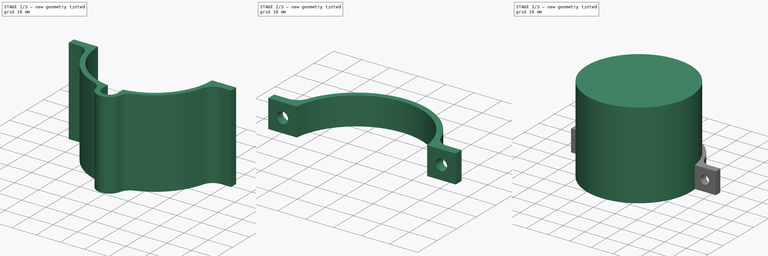
[diagram: build sequence overview — one tinted view per stage of 3, left to right]
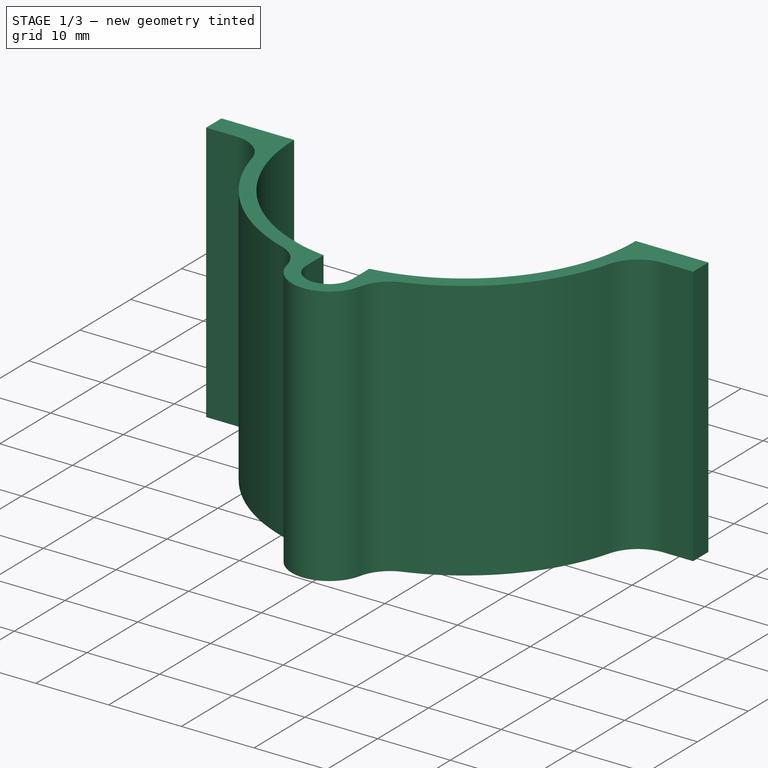
[diagram: stage 1 of 3 — iso view after this stage's code; geometry added in this stage tinted green]
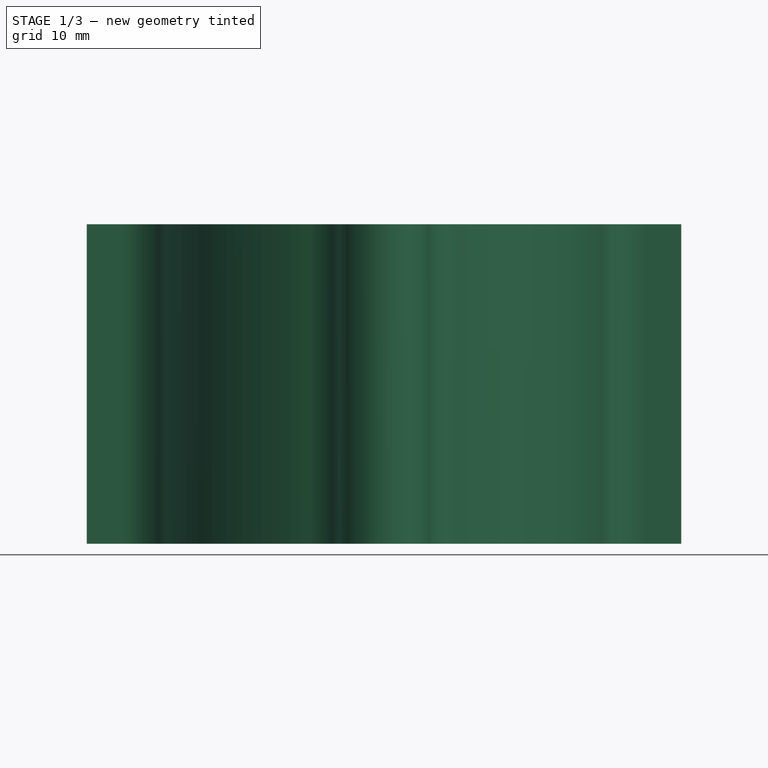
[diagram: stage 1 of 3 — front view after this stage's code; geometry added in this stage tinted green]
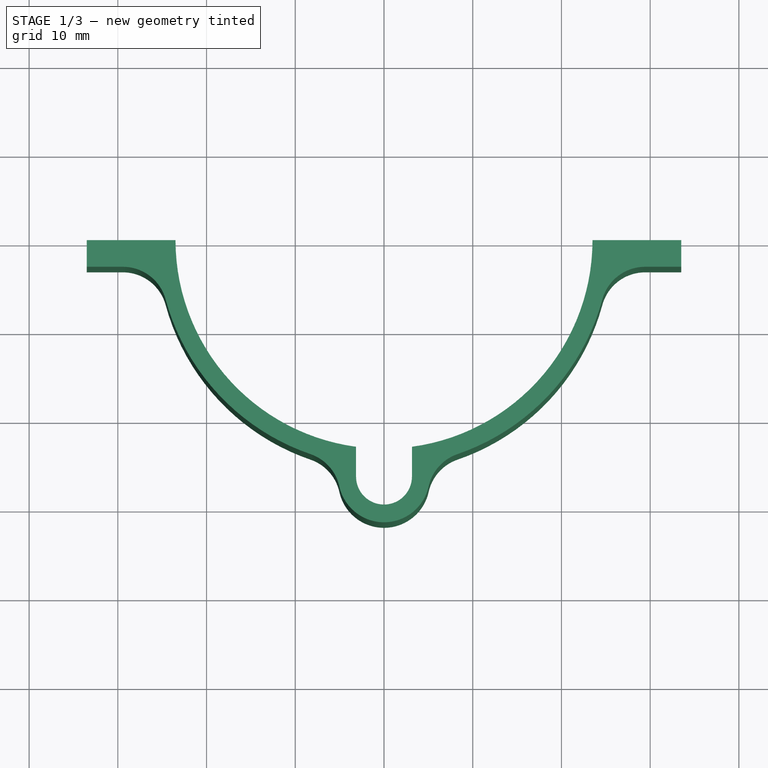
[diagram: stage 1 of 3 — top view after this stage's code; geometry added in this stage tinted green]
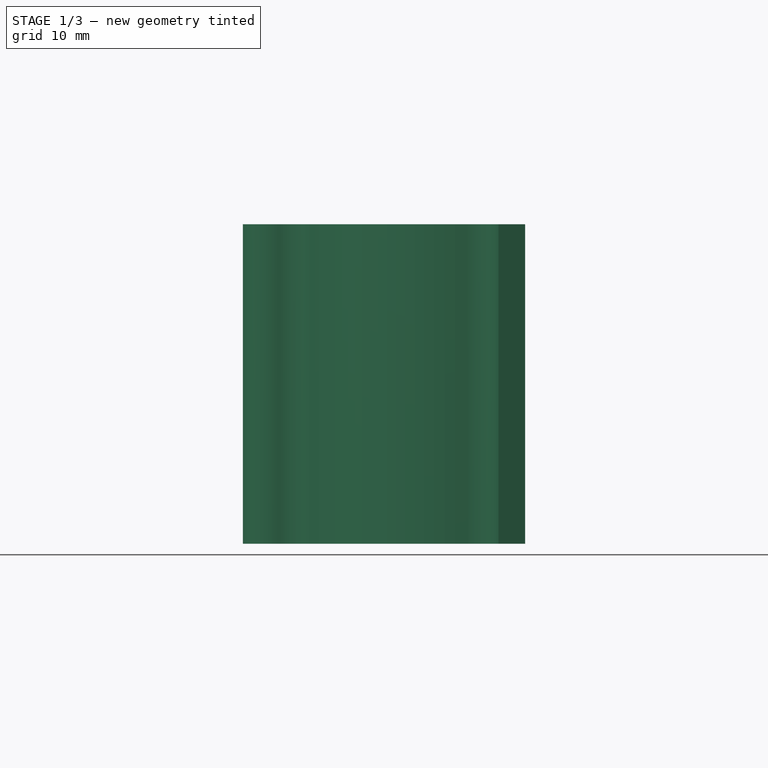
[diagram: stage 1 of 3 — right view after this stage's code; geometry added in this stage tinted green]
FCSTD DOCUMENT  (FreeCAD 1.0R39319 (Git))
Label: sensor_mount
License: All rights reserved
objects: Sketcher::SketchObject×8, PartDesign::Pad×5, PartDesign::Body×5, PartDesign::SubShapeBinder×2, PartDesign::Pocket×2, App::DocumentObjectGroup×1
note: 44 computed .brp shape members not serialized (recipe doc carries the construction recipe); baked Part::Feature solids carry a one-line shape summary decoded from their .brp

FEATURE [Sketcher::SketchObject] Sketch
  ArcFitTolerance = 1e-06
  AttachmentSupport = -> [XY_Plane]
  FullyConstrained = true
  MakeInternals = false
  MapMode = 5
  sketch-geometry (1):
    g0: Circle CenterX=0 CenterY=0 CenterZ=0 NormalX=0 NormalY=0 NormalZ=1 AngleXU=0 Radius=23.5
  constraints (2):
    c: Diameter(g0) = 47
    c: Coincident(g0,g-1)
FEATURE [PartDesign::Pad] Pad
  Direction = (0,0,1)
  Length = 43
  Length2 = 10
  Profile = -> Sketch
  ReferenceAxis = -> Sketch [N_Axis]
  Refine = true
  Suppressed = false
  Type = 0
FEATURE [PartDesign::Body] Body002  label="DS1820"
  AllowCompound = false
  Group = -> [Sketch002,Pad002]
  Origin = -> Origin002
  Placement = pos=(0,-26.7,0) rot=(0,0,1;0rad)
  Tip = -> Pad002
FEATURE [PartDesign::SubShapeBinder] Binder
  BindCopyOnChange = 0
  BindMode = 0
  ClaimChildren = false
  Context = -> Body003 [Binder.]
  Fuse = false
  MakeFace = true
  OffsetFill = false
  OffsetIntersection = false
  OffsetJoinType = 0
  OffsetOpenResult = false
  PartialLoad = false
  Refine = true
  Relative = true
  Support = -> [Body[Sketch.]]
  _Version = 2
FEATURE [Sketcher::SketchObject] Sketch003
  ArcFitTolerance = 1e-06
  AttachmentSupport = -> [XY_Plane003]
  ExternalGeometry = -> [Binder]
  FullyConstrained = false
  MakeInternals = false
  MapMode = 5
  sketch-geometry (20):
    g0: ArcOfCircle CenterX=-1.7e-15 CenterY=-4e-16 CenterZ=0 NormalX=0 NormalY=0 NormalZ=1 AngleXU=0 Radius=25.5 StartAngle=3.40699 EndAngle=4.38147
    g1: Circle [constr] CenterX=0 CenterY=-26.65 CenterZ=0 NormalX=0 NormalY=0 NormalZ=1 AngleXU=0 Radius=3.15
    g2: ArcOfCircle CenterX=0 CenterY=-26.65 CenterZ=0 NormalX=0 NormalY=0 NormalZ=1 AngleXU=0 Radius=3.15 StartAngle=3.14159 EndAngle=6.28319
    g3: LineSegment StartX=3.15 StartY=-26.65 StartZ=0 EndX=3.15 EndY=-23.2879 EndZ=0
    g4: LineSegment StartX=-3.15 StartY=-26.65 StartZ=0 EndX=-3.15 EndY=-23.2879 EndZ=0
    g5: ArcOfCircle CenterX=0 CenterY=-26.65 CenterZ=0 NormalX=0 NormalY=0 NormalZ=1 AngleXU=0 Radius=5.15 StartAngle=3.35959 EndAngle=6.06519
    g6: LineSegment StartX=-33.5 StartY=-3 StartZ=0 EndX=-29.4321 EndY=-3 EndZ=0
    g7: LineSegment StartX=-33.5 StartY=-3 StartZ=0 EndX=-33.5 EndY=2.7e-15 EndZ=0
    g8: LineSegment StartX=-33.5 StartY=2.5e-15 StartZ=0 EndX=-23.5 EndY=2.5e-15 EndZ=0
    g9: LineSegment StartX=33.5 StartY=-3 StartZ=0 EndX=29.4321 EndY=-3 EndZ=0
    g10: LineSegment StartX=33.5 StartY=-3 StartZ=0 EndX=33.5 EndY=2.7e-15 EndZ=0
    g11: LineSegment StartX=33.5 StartY=2.5e-15 StartZ=0 EndX=23.5 EndY=2.5e-15 EndZ=0
    g12: ArcOfCircle CenterX=-1.7e-15 CenterY=-4e-16 CenterZ=0 NormalX=0 NormalY=0 NormalZ=1 AngleXU=0 Radius=23.5 StartAngle=3.14159 EndAngle=4.57794
    g13: ArcOfCircle CenterX=-1.7e-15 CenterY=-4e-16 CenterZ=0 NormalX=0 NormalY=0 NormalZ=1 AngleXU=0 Radius=23.5 StartAngle=4.84684 EndAngle=6.28319
    g14: ArcOfCircle CenterX=-1.7e-15 CenterY=-4e-16 CenterZ=0 NormalX=0 NormalY=0 NormalZ=1 AngleXU=0 Radius=25.5 StartAngle=5.04331 EndAngle=6.01779
    g15: ArcOfCircle CenterX=-9.90977 CenterY=-28.8452 CenterZ=0 NormalX=0 NormalY=0 NormalZ=1 AngleXU=0 Radius=5 StartAngle=0.218 EndAngle=1.23988
    g16: ArcOfCircle CenterX=9.90977 CenterY=-28.8452 CenterZ=0 NormalX=0 NormalY=0 NormalZ=1 AngleXU=0 Radius=5 StartAngle=1.90171 EndAngle=2.92359
    g17: ArcOfCircle CenterX=-29.4321 CenterY=-8 CenterZ=0 NormalX=0 NormalY=0 NormalZ=1 AngleXU=0 Radius=5 StartAngle=0.2654 EndAngle=1.5708
    g18: ArcOfCircle CenterX=29.4321 CenterY=-8 CenterZ=0 NormalX=0 NormalY=0 NormalZ=1 AngleXU=0 Radius=5 StartAngle=1.5708 EndAngle=2.87619
    g19: Circle [constr] CenterX=-1.7e-15 CenterY=-4e-16 CenterZ=0 NormalX=0 NormalY=0 NormalZ=1 AngleXU=0 Radius=25.5
  constraints (55):
    c: Horizontal(g8,g11)
    c: PointOnObject(g11,g-3)
    c: Diameter(g1) = 6.3
    c: PointOnObject(g1,g-2)
    c: Coincident(g2,g1)
    c: PointOnObject(g2,g1)
    c: Coincident(g3,g2)
    c: PointOnObject(g3,g-3)
    c: Vertical(g3)
    c: Tangent(g3,g1)
    c: Coincident(g4,g2)
    c: PointOnObject(g4,g-3)
    c: Vertical(g4)
    c: Coincident(g5,g1)
    c: Distance(g2,g5) = 2
    c: Horizontal(g6)
    c: Coincident(g6,g7)
    c: Vertical(g7)
    c: Coincident(g7,g8)
    c: Horizontal(g8)
    c: PointOnObject(g7,g-1)
    c: DistanceY(g7,g7) = 3
    c: Horizontal(g9)
    c: Coincident(g10,g9)
    c: Vertical(g10)
    c: Coincident(g11,g10)
    c: Horizontal(g11)
    c: Coincident(g12,g0)
    c: Coincident(g12,g8)
    c: Coincident(g12,g4)
    c: Coincident(g13,g0)
    c: Coincident(g13,g11)
    c: Coincident(g13,g3)
    c: Tangent(g-3,g1)
    c: Tangent(g5,g15) = 1.5708
    c: Tangent(g0,g15) = 1.5708
    c: PointOnObject(g8,g-3)
    c: Radius(g15) = 5
    c: Tangent(g5,g16) = 1.5708
    c: Tangent(g14,g16) = 1.5708
    c: Radius(g16) = 5
    c: Coincident(g0,g14)
    c: Tangent(g6,g17) = 1.5708
    c: Tangent(g0,g17) = 1.5708
    c: Radius(g17) = 5
    c: Tangent(g9,g18) = -1.5708
    c: Tangent(g14,g18) = 1.5708
    c: Radius(g18) = 5
    c: DistanceY(g10,g10) = 3
    c: Coincident(g19,g0)
    c: Diameter(g19) = 51
    c: PointOnObject(g0,g19)
    c: PointOnObject(g14,g19)
    c: Distance(g-3,g7) = 10
    c: Distance(g11,g10) = 10
FEATURE [PartDesign::Pad] Pad003
  Direction = (0,0,1)
  Length = 36
  Length2 = 10
  Profile = -> Sketch003
  ReferenceAxis = -> Sketch003 [N_Axis]
  Refine = true
  Suppressed = false
  Type = 0
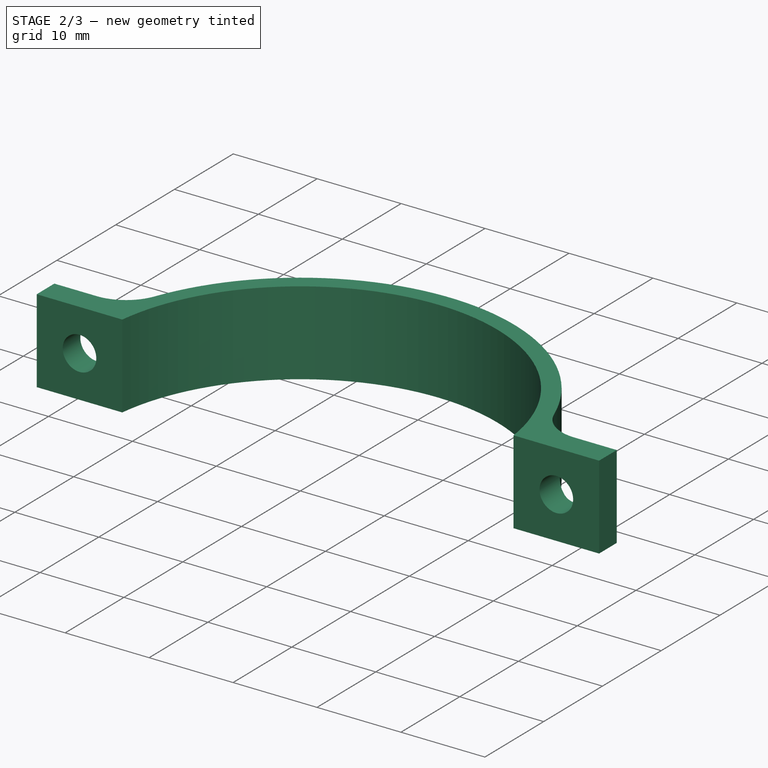
[diagram: stage 2 of 3 — iso view after this stage's code; geometry added in this stage tinted green]
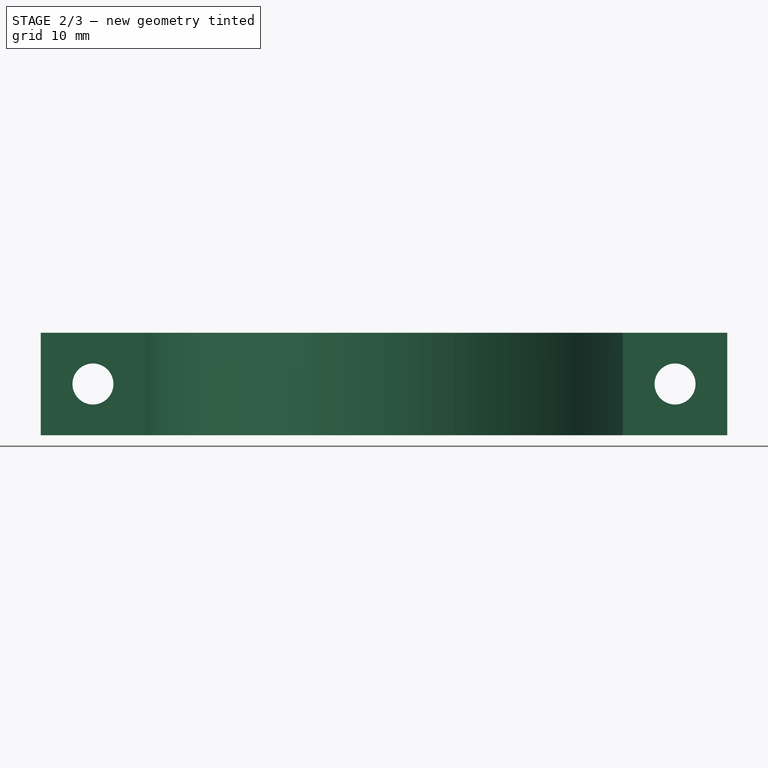
[diagram: stage 2 of 3 — front view after this stage's code; geometry added in this stage tinted green]
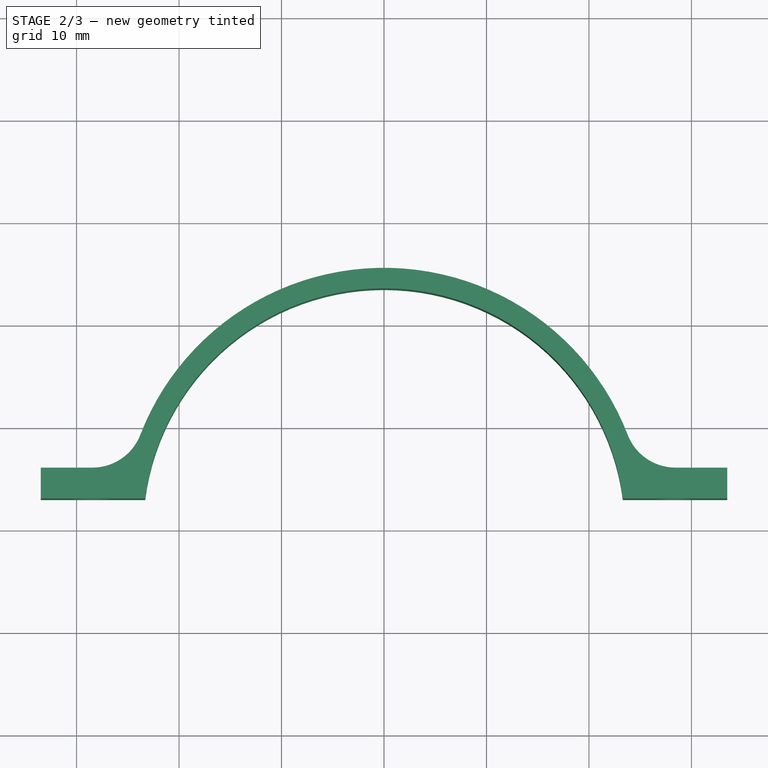
[diagram: stage 2 of 3 — top view after this stage's code; geometry added in this stage tinted green]
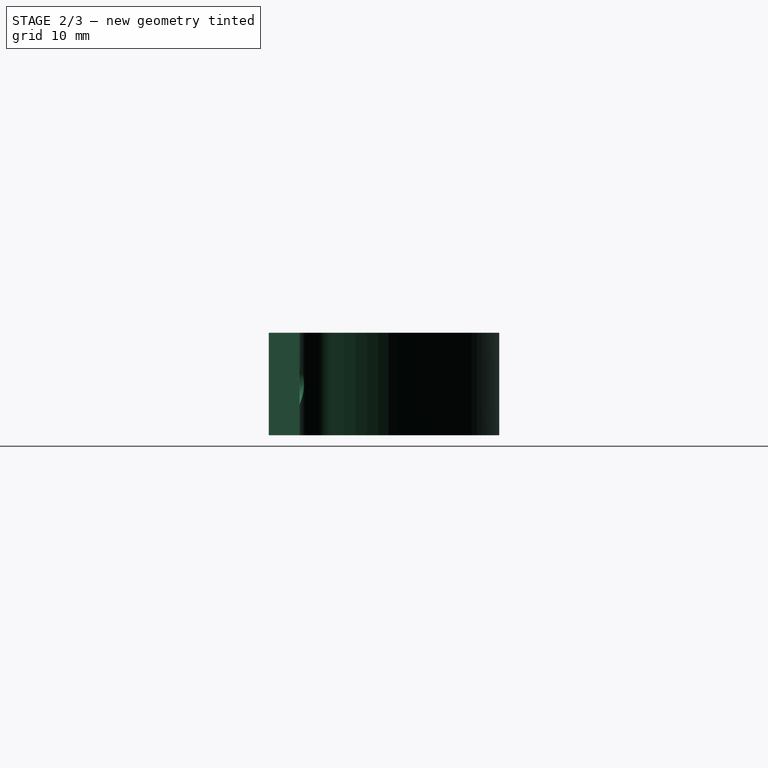
[diagram: stage 2 of 3 — right view after this stage's code; geometry added in this stage tinted green]
FEATURE [PartDesign::SubShapeBinder] Binder001
  BindCopyOnChange = 0
  BindMode = 0
  ClaimChildren = false
  Context = -> Body004 [Binder001.]
  Fuse = false
  MakeFace = true
  OffsetFill = false
  OffsetIntersection = false
  OffsetJoinType = 0
  OffsetOpenResult = false
  PartialLoad = false
  Refine = true
  Relative = true
  Support = -> [Body003[Sketch003.]]
  _Version = 2
FEATURE [Sketcher::SketchObject] Sketch004
  ArcFitTolerance = 1e-06
  AttachmentSupport = -> [XY_Plane004]
  ExternalGeometry = -> [Binder001]
  FullyConstrained = true
  MakeInternals = false
  MapMode = 5
  sketch-geometry (12):
    g0: Circle [constr] CenterX=0 CenterY=0 CenterZ=0 NormalX=0 NormalY=0 NormalZ=1 AngleXU=0 Radius=23.5
    g1: ArcOfCircle CenterX=0 CenterY=0 CenterZ=0 NormalX=0 NormalY=0 NormalZ=1 AngleXU=0 Radius=23.5 StartAngle=0.128009 EndAngle=3.01358
    g2: LineSegment StartX=-33.5 StartY=3 StartZ=0 EndX=-23.3077 EndY=3 EndZ=0
    g3: LineSegment StartX=-33.5 StartY=3 StartZ=0 EndX=-33.5 EndY=6 EndZ=0
    g4: LineSegment StartX=-33.5 StartY=6 StartZ=0 EndX=-28.4473 EndY=6 EndZ=0
    g5: LineSegment StartX=23.3077 StartY=3 StartZ=0 EndX=33.5 EndY=3 EndZ=0
    g6: LineSegment StartX=33.5 StartY=3 StartZ=0 EndX=33.5 EndY=6 EndZ=0
    g7: LineSegment StartX=33.5 StartY=6 StartZ=0 EndX=28.4473 EndY=6 EndZ=0
    g8: ArcOfCircle CenterX=0 CenterY=0 CenterZ=0 NormalX=0 NormalY=0 NormalZ=1 AngleXU=0 Radius=25.5 StartAngle=0.368971 EndAngle=2.77262
    g9: Circle [constr] CenterX=0 CenterY=0 CenterZ=0 NormalX=0 NormalY=0 NormalZ=1 AngleXU=0 Radius=25.5
    g10: ArcOfCircle CenterX=-28.4473 CenterY=11 CenterZ=0 NormalX=0 NormalY=0 NormalZ=1 AngleXU=0 Radius=5 StartAngle=4.71239 EndAngle=5.91421
    g11: ArcOfCircle CenterX=28.4473 CenterY=11 CenterZ=0 NormalX=0 NormalY=0 NormalZ=1 AngleXU=0 Radius=5 StartAngle=3.51056 EndAngle=4.71239
  constraints (32):
    c: Coincident(g0,g-1)
    c: Coincident(g1,g0)
    c: PointOnObject(g1,g0)
    c: Horizontal(g1,g1)
    c: Coincident(g2,g1)
    c: Horizontal(g2)
    c: Coincident(g3,g2)
    c: Vertical(g3)
    c: Coincident(g4,g3)
    c: Horizontal(g4)
    c: Coincident(g5,g1)
    c: Horizontal(g5)
    c: Coincident(g6,g5)
    c: Coincident(g7,g6)
    c: Horizontal(g7)
    c: Vertical(g6)
    c: Vertical(g2,g-4)
    c: Vertical(g5,g-5)
    c: Coincident(g8,g0)
    c: Diameter(g9) = 51
    c: Coincident(g9,g0)
    c: Tangent(g8,g9)
    c: DistanceY(g3,g3) = 3
    c: PointOnObject(g-3,g0)
    c: Distance(g1,g-1) = 3
    c: Tangent(g4,g10) = -1.5708
    c: Tangent(g8,g10) = 1.5708
    c: Tangent(g7,g11) = 1.5708
    c: Tangent(g8,g11) = 1.5708
    c: Equal(g6,g3)
    c: Radius(g11) = 5
    c: Radius(g10) = 5
FEATURE [PartDesign::Pad] Pad004
  Direction = (0,0,1)
  Length = 10
  Length2 = 10
  Profile = -> Sketch004
  ReferenceAxis = -> Sketch004 [N_Axis]
  Refine = true
  Suppressed = false
  Type = 0
FEATURE [Sketcher::SketchObject] Sketch005  label="holes"
  ArcFitTolerance = 1e-06
  AttachmentSupport = -> [XZ_Plane004]
  ExternalGeometry = -> [Pad004]
  FullyConstrained = true
  MakeInternals = false
  MapMode = 5
  Placement = pos=(0,0,0) rot=(1,0,0;1.5708rad)
  sketch-geometry (6):
    g0: LineSegment [constr] StartX=-28.4039 StartY=10 StartZ=0 EndX=-28.4039 EndY=0 EndZ=0
    g1: LineSegment [constr] StartX=-33.5 StartY=5 StartZ=0 EndX=-23.3077 EndY=5 EndZ=0
    g2: Circle CenterX=-28.4039 CenterY=5 CenterZ=0 NormalX=0 NormalY=0 NormalZ=1 AngleXU=0 Radius=2
    g3: LineSegment [constr] StartX=23.3077 StartY=5 StartZ=0 EndX=33.5 EndY=5 EndZ=0
    g4: LineSegment [constr] StartX=28.4039 StartY=10 StartZ=0 EndX=28.4039 EndY=0 EndZ=0
    g5: Circle CenterX=28.4039 CenterY=5 CenterZ=0 NormalX=0 NormalY=0 NormalZ=1 AngleXU=0 Radius=2
  constraints (13):
    c: Symmetric(g-3,g-3,g0)
    c: PointOnObject(g0,g-1)
    c: Vertical(g0)
    c: Symmetric(g-4,g-4,g1)
    c: Symmetric(g-5,g-5,g1)
    c: Diameter(g2) = 4
    c: Symmetric(g1,g1,g2)
    c: Symmetric(g-7,g-7,g3)
    c: Symmetric(g-8,g-8,g3)
    c: Symmetric(g-6,g-6,g4)
    c: Symmetric(g-9,g-9,g4)
    c: Diameter(g5) = 4
    c: Symmetric(g3,g3,g5)
FEATURE [PartDesign::Pocket] Pocket
  BaseFeature = -> Pad004
  Direction = (0,1,-2e-16)
  Length = 5
  Length2 = 5
  Midplane = true
  Profile = -> Sketch005
  ReferenceAxis = -> Sketch005 [N_Axis]
  Refine = true
  Suppressed = false
  Type = 1
FEATURE [PartDesign::Body] Body004  label="m2"
  AllowCompound = false
  Group = -> [Binder001,Sketch004,Pad004,Sketch005,Pocket]
  Origin = -> Origin004
  Placement = pos=(0,0,13) rot=(0,0,1;0rad)
  Tip = -> Pocket
FEATURE [Sketcher::SketchObject] Sketch006
  ArcFitTolerance = 1e-06
  AttachmentSupport = -> [XZ_Plane003]
  FullyConstrained = true
  MakeInternals = false
  MapMode = 5
  Placement = pos=(0,0,0) rot=(1,0,0;1.5708rad)
FEATURE [Sketcher::SketchObject] Sketch007
  ArcFitTolerance = 1e-06
  AttachmentSupport = -> [Pad003]
  ExternalGeometry = -> [Pad003]
  FullyConstrained = false
  MakeInternals = false
  MapMode = 5
  Placement = pos=(0,2.5e-15,0) rot=(0,0.707107,0.707107;3.14159rad)
  sketch-geometry (6):
    g0: LineSegment [constr] StartX=-28.5 StartY=36 StartZ=0 EndX=-28.5 EndY=0 EndZ=0
    g1: LineSegment [constr] StartX=-33.5 StartY=18 StartZ=0 EndX=-23.7242 EndY=18 EndZ=0
    g2: LineSegment [constr] StartX=23.5 StartY=18 StartZ=0 EndX=33.5 EndY=18 EndZ=0
    g3: LineSegment [constr] StartX=28.5 StartY=36 StartZ=0 EndX=28.5 EndY=0 EndZ=0
    g4: Circle CenterX=-28.5 CenterY=18 CenterZ=0 NormalX=0 NormalY=0 NormalZ=1 AngleXU=0 Radius=2
    g5: Circle CenterX=28.5 CenterY=18 CenterZ=0 NormalX=0 NormalY=0 NormalZ=1 AngleXU=0 Radius=2
  constraints (14):
    c: Symmetric(g-3,g-3,g0)
    c: PointOnObject(g0,g-1)
    c: Vertical(g0)
    c: Symmetric(g-4,g-4,g1)
    c: Horizontal(g1)
    c: Symmetric(g-6,g-6,g2)
    c: Symmetric(g-8,g-8,g2)
    c: Symmetric(g-7,g-7,g3)
    c: PointOnObject(g3,g-1)
    c: Vertical(g3)
    c: Diameter(g4) = 4
    c: Symmetric(g0,g0,g4)
    c: Diameter(g5) = 4
    c: Symmetric(g2,g2,g5)
FEATURE [PartDesign::Pocket] Pocket001
  BaseFeature = -> Pad003
  Direction = (0,-1,2e-16)
  Length = 5
  Length2 = 5
  Midplane = true
  Profile = -> Sketch007
  ReferenceAxis = -> Sketch007 [N_Axis]
  Refine = true
  Suppressed = false
  Type = 1
FEATURE [PartDesign::Body] Body003  label="m1"
  AllowCompound = false
  Group = -> [Sketch003,Binder,Pad003,Sketch006,Sketch007,Pocket001]
  Origin = -> Origin003
  Tip = -> Pocket001
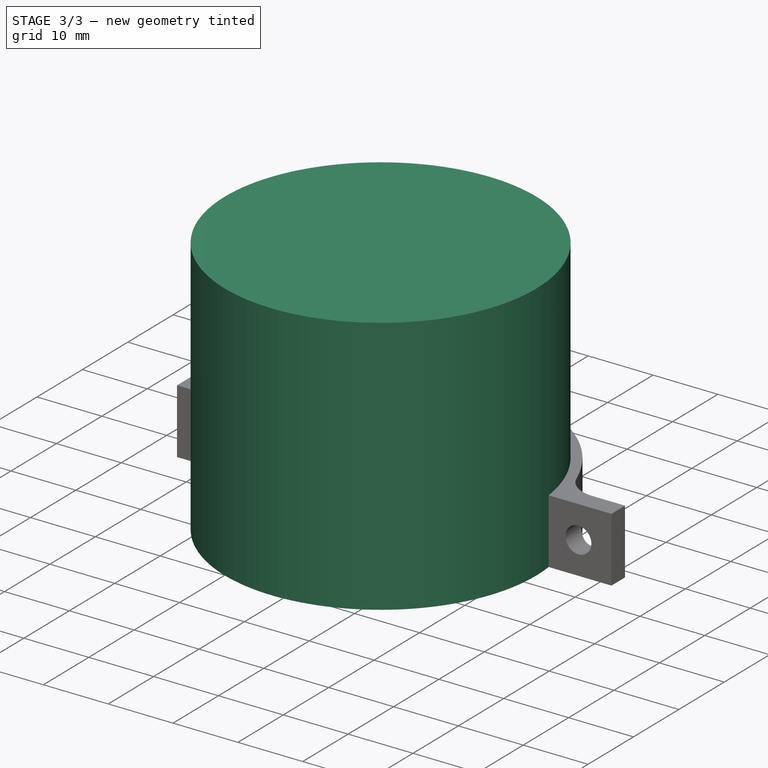
[diagram: stage 3 of 3 — iso view after this stage's code; geometry added in this stage tinted green]
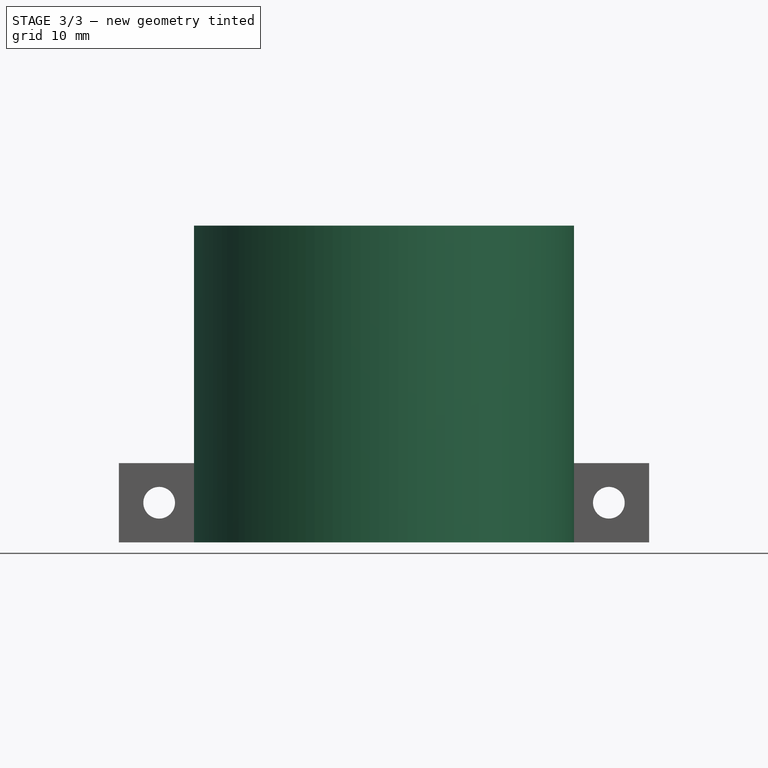
[diagram: stage 3 of 3 — front view after this stage's code; geometry added in this stage tinted green]
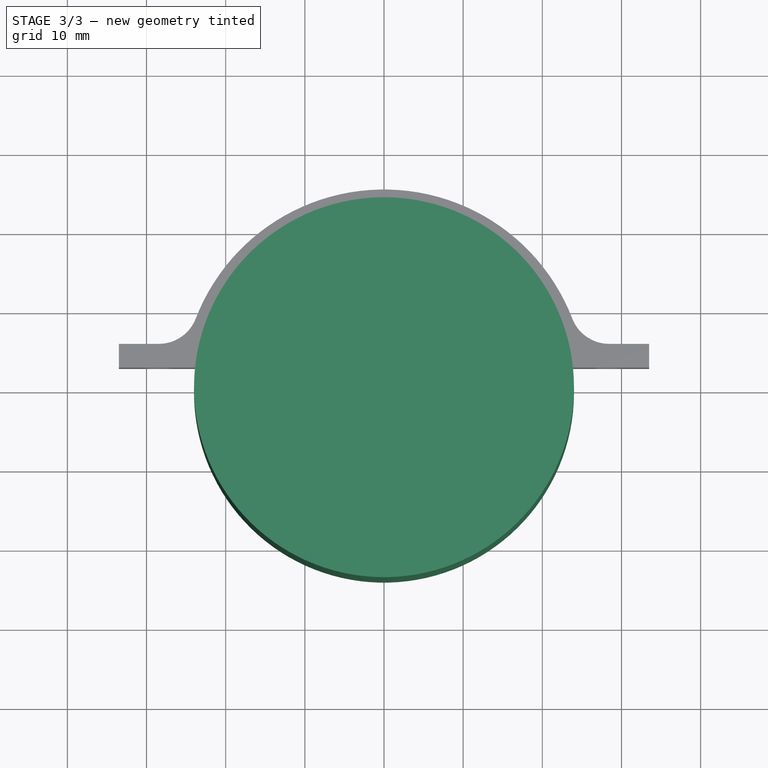
[diagram: stage 3 of 3 — top view after this stage's code; geometry added in this stage tinted green]
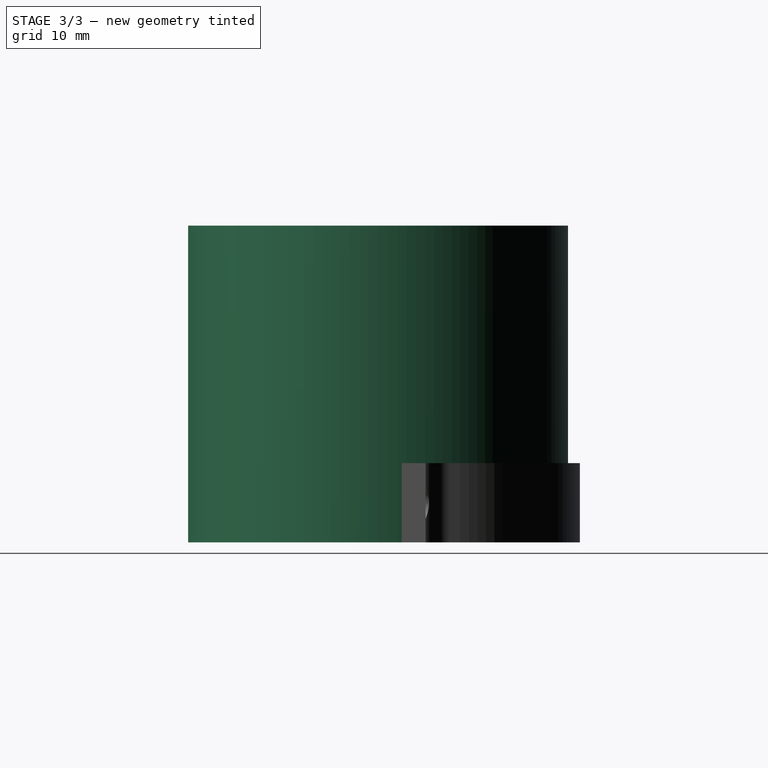
[diagram: stage 3 of 3 — right view after this stage's code; geometry added in this stage tinted green]
FEATURE [PartDesign::Body] Body  label="p1"
  AllowCompound = false
  Group = -> [Sketch,Pad]
  Origin = -> Origin
  Tip = -> Pad
FEATURE [Sketcher::SketchObject] Sketch001
  ArcFitTolerance = 1e-06
  AttachmentSupport = -> [XY_Plane001]
  FullyConstrained = true
  MakeInternals = false
  MapMode = 5
  sketch-geometry (1):
    g0: Circle CenterX=0 CenterY=0 CenterZ=0 NormalX=0 NormalY=0 NormalZ=1 AngleXU=0 Radius=24
  constraints (2):
    c: Diameter(g0) = 48
    c: Coincident(g0,g-1)
FEATURE [PartDesign::Pad] Pad001
  Direction = (0,0,1)
  Length = 40
  Length2 = 10
  Profile = -> Sketch001
  ReferenceAxis = -> Sketch001 [N_Axis]
  Refine = true
  Suppressed = false
  Type = 0
FEATURE [PartDesign::Body] Body001  label="p-boiler"
  AllowCompound = false
  Group = -> [Sketch001,Pad001]
  Origin = -> Origin001
  Placement = pos=(100,0,0) rot=(0,0,1;0rad)
  Tip = -> Pad001
FEATURE [App::DocumentObjectGroup] Group  label="Pipes"
  Group = -> [Body,Body001]
FEATURE [Sketcher::SketchObject] Sketch002
  ArcFitTolerance = 1e-06
  AttachmentSupport = -> [XY_Plane002]
  FullyConstrained = true
  MakeInternals = false
  MapMode = 5
  sketch-geometry (1):
    g0: Circle CenterX=0 CenterY=0 CenterZ=0 NormalX=0 NormalY=0 NormalZ=1 AngleXU=0 Radius=3
  constraints (2):
    c: Diameter(g0) = 6
    c: Coincident(g0,g-1)
FEATURE [PartDesign::Pad] Pad002
  Direction = (0,0,1)
  Length = 36
  Length2 = 10
  Profile = -> Sketch002
  ReferenceAxis = -> Sketch002 [N_Axis]
  Refine = true
  Suppressed = false
  Type = 0
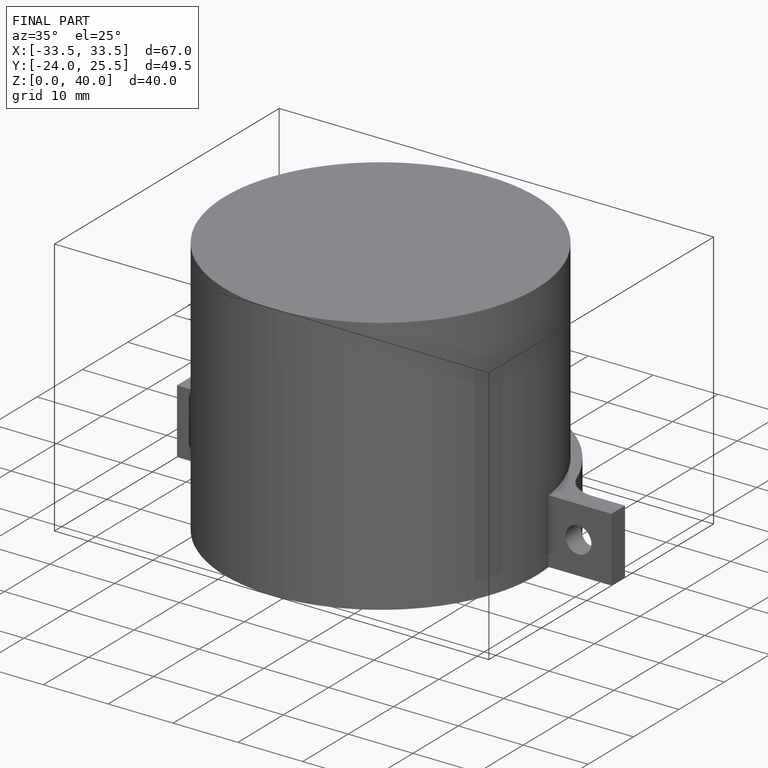
[diagram: finished part — iso view with bounding-box wireframe]
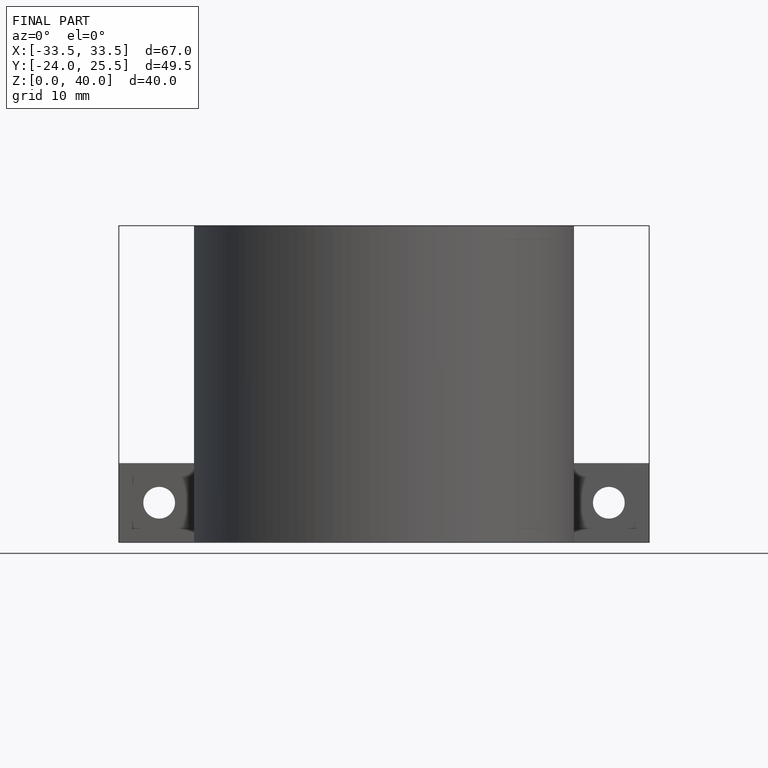
[diagram: finished part — front view with bounding-box wireframe]
